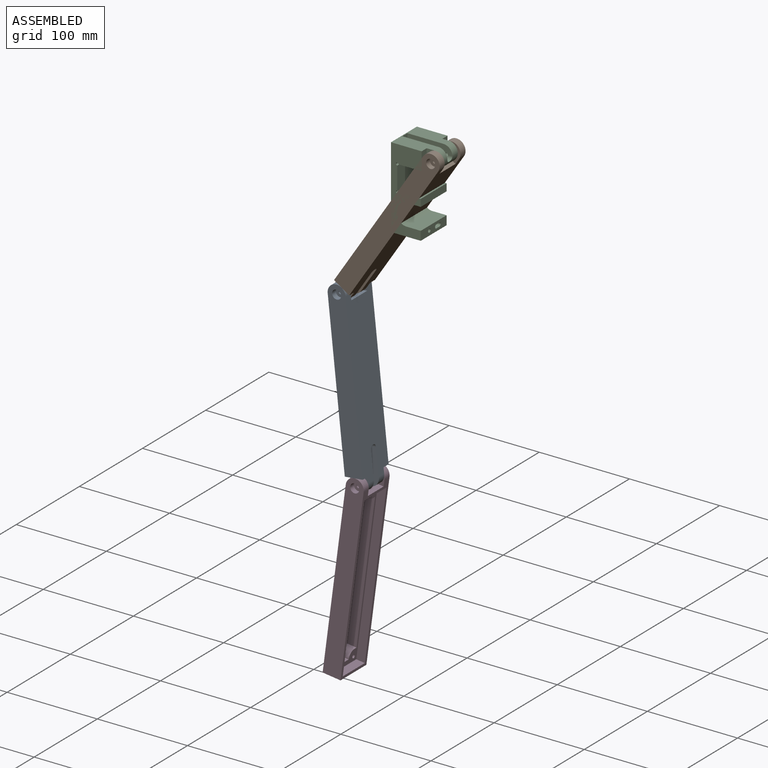
[diagram: assembled view]
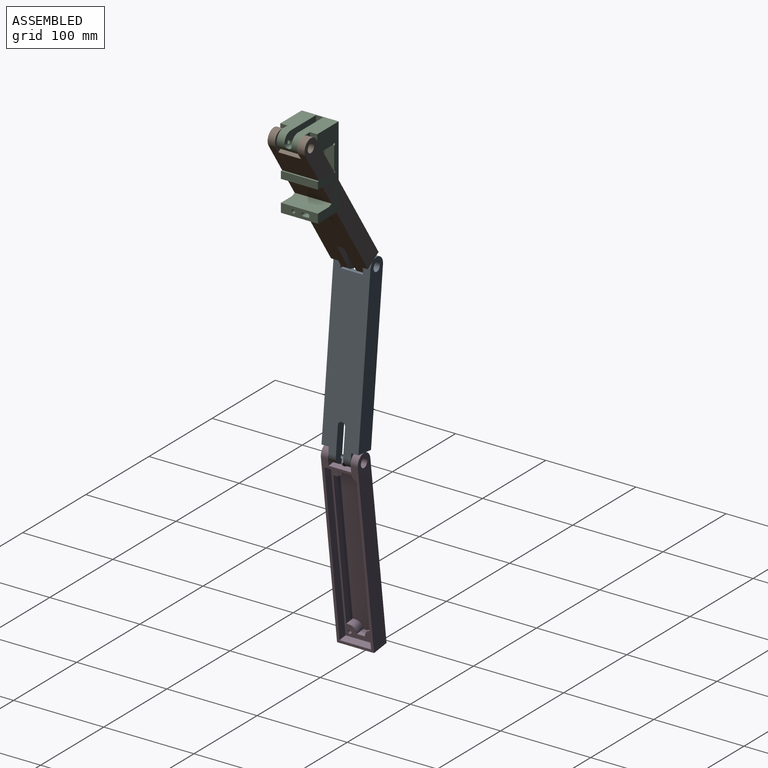
[diagram: assembled view, second angle]
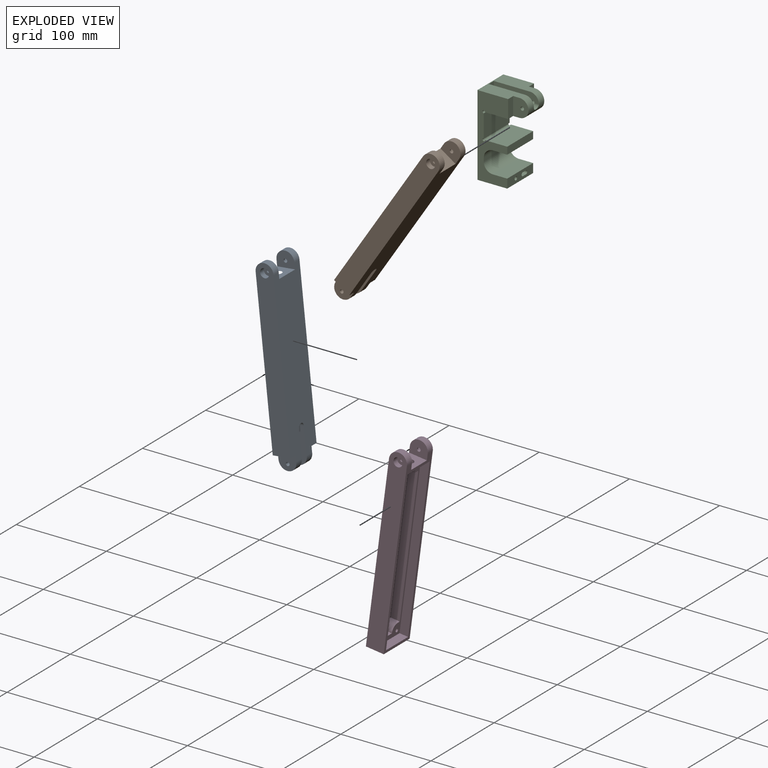
[diagram: exploded view]
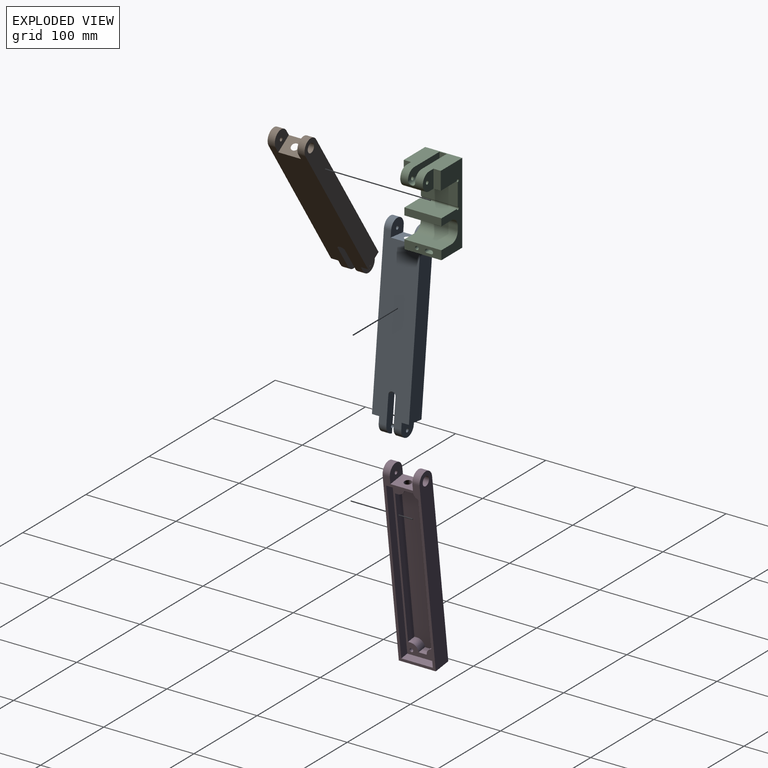
[diagram: exploded view, second angle]
ASSEMBLY  parts=4 mates=6
PART A: 27 faces, bbox 223x57x36 mm
  f0: cylinder r=2mm len=9.04mm, axis (0,-1,0), area 108.5mm2, adj f1,f2,f3
  f1: plane 20x17mm, normal (0,1,0), area 284.5mm2, adj f0,f4,f5,f6,f7
  f2: cylinder r=4mm len=44.01mm, axis (1,0,0), area 458.6mm2, adj f0,f3,f4,f8,f9,f10
  f3: plane 56x26mm, normal (0,-1,0), area 372.3mm2, adj f0,f2,f4,f5,f10
  f4: cylinder r=10mm len=25mm, axis (0,-1,0), area 634.1mm2, adj f1,f2,f3,f5,f7,f8,f11
  f5: plane 187x41mm, normal (0,0,1), area 7114.9mm2, adj f1,f3,f4,f6,f8,f10,f11,f12
  f6: plane 20x8mm, normal (-1,0,0), area 160mm2, adj f1,f5,f7,f19
  f7: plane 187x41mm, normal (0,0,-1), area 7380mm2, adj f1,f4,f6,f11,f12,f13,f14,f15
  f8: plane 40x10mm, normal (0,1,0), area 372.3mm2, adj f2,f4,f5,f9,f10
  f9: cylinder r=2mm len=9.04mm, axis (0,-1,0), area 108.5mm2, adj f2,f8,f11
  f10: cylinder r=4mm len=10mm, axis (0,0,1), area 93.7mm2, adj f2,f3,f5,f8
  f11: plane 20x17mm, normal (0,-1,0), area 284.5mm2, adj f4,f5,f7,f9,f12
  f12: plane 20x8mm, normal (-1,0,0), area 160mm2, adj f5,f7,f11,f13
  f13: plane 190x20mm, normal (0,-1,0), area 3678.5mm2, adj f5,f7,f12,f14,f20
  f14: cylinder r=10mm len=20mm, axis (0,-1,0), area 251.3mm2, adj f5,f7,f13,f15
  f15: plane 20x17mm, normal (0,1,0), area 284.5mm2, adj f5,f7,f14,f16,f21
  f16: plane 41x36mm, normal (1,0,0), area 449.7mm2, adj f5,f7,f15,f17,f22
  f17: plane 20x17mm, normal (0,-1,0), area 284.5mm2, adj f5,f7,f16,f18,f23
  f18: cylinder r=10mm len=20mm, axis (0,-1,0), area 251.3mm2, adj f5,f7,f17,f19
  f19: plane 190x20mm, normal (0,1,0), area 3678.5mm2, adj f5,f6,f7,f18,f24
  f20: cylinder r=5mm len=10mm, axis (0,-1,0), area 188.5mm2, adj f13,f25
  f21: cylinder r=2mm len=4mm, axis (0,-1,0), area 25.1mm2, adj f15,f25
  f22: cylinder r=4mm len=8mm, axis (1,0,0), area 0mm2, adj f16
  f23: cylinder r=2mm len=4mm, axis (0,-1,0), area 25.1mm2, adj f17,f26
  f24: cylinder r=5mm len=10mm, axis (0,1,0), area 188.5mm2, adj f19,f26
  f25: plane 10x10mm, normal (0,-1,0), area 66mm2, adj f20,f21
  f26: plane 10x10mm, normal (0,1,0), area 66mm2, adj f23,f24
PART B: same geometry as A
PART C: 35 faces, bbox 51.4x41.4x90.4 mm
  f0: cylinder r=4mm len=50mm, axis (-1,0,0), area 558.8mm2, adj f1,f2,f4,f6,f8,f9,f34
  f1: plane 50x9.99mm, normal (0,-1,0), area 471.7mm2, adj f0,f6,f9,f11,f34
  f2: plane 50x10mm, normal (0,1,0), area 472.3mm2, adj f0,f8,f9,f11,f34
  f3: cylinder r=4mm len=78mm, axis (0,0,1), area 772.5mm2, adj f4,f5,f27,f34
  f4: bspline ~7.94x7.5mm, area 58.7mm2, adj f0,f3,f34
  f5: plane 41x33mm, normal (0,0,-1), area 1335.8mm2, adj f3,f7,f13,f14,f16,f34
  f6: cylinder r=2mm len=9.04mm, axis (0,-1,0), area 108.5mm2, adj f0,f1,f18
  f7: plane 90x41mm, normal (1,0,0), area 3644.9mm2, adj f5,f11,f13,f16,f25,f26,f27,f28
  f8: cylinder r=2mm len=9.04mm, axis (0,-1,0), area 108.5mm2, adj f0,f2,f10
  f9: cylinder r=10mm len=25mm, axis (0,-1,0), area 634.1mm2, adj f0,f1,f2,f10,f11,f12,f18
  f10: plane 20x17mm, normal (0,-1,0), area 284.5mm2, adj f8,f9,f11,f12,f15
  f11: plane 41x41mm, normal (0,0,1), area 1249mm2, adj f1,f2,f7,f9,f10,f13,f15,f16
  f12: plane 41x32.5mm, normal (0,0,-1), area 1220.5mm2, adj f9,f10,f13,f15,f16,f17,f18,f31
  f13: plane 90x34mm, normal (0,1,0), area 1670.3mm2, adj f5,f7,f11,f12,f14,f17,f19,f20
  f14: plane 41x10mm, normal (-1,0,0), area 364.9mm2, adj f5,f13,f16,f24,f25,f26,f27,f28
  f15: plane 20x8mm, normal (-1,0,0), area 160mm2, adj f10,f11,f12,f16
  f16: plane 90x34mm, normal (0,-1,0), area 1670.3mm2, adj f5,f7,f11,f12,f14,f15,f19,f20
  f17: plane 20x8mm, normal (-1,0,0), area 160mm2, adj f11,f12,f13,f18
  f18: plane 20x17mm, normal (0,1,0), area 284.5mm2, adj f6,f9,f11,f12,f17
  f19: plane 41x25mm, normal (-1,0,0), area 1025mm2, adj f13,f16,f30,f31
  f20: plane 41x24.5mm, normal (0,0,1), area 1004.5mm2, adj f13,f16,f21,f30
  f21: plane 41x8mm, normal (-1,0,0), area 328mm2, adj f13,f16,f20,f22
  f22: plane 41x16mm, normal (0,0,-1), area 656mm2, adj f13,f16,f21,f32
  f23: plane 41x4mm, normal (-1,0,0), area 164mm2, adj f13,f16,f32,f33
  f24: plane 41x16mm, normal (0,0,1), area 656mm2, adj f13,f14,f16,f33
  f25: cylinder r=2mm len=33mm, axis (-1,0,0), area 207.3mm2, adj f7,f14,f26,f28
  f26: plane 33x5mm, normal (0,0,-1), area 165mm2, adj f7,f14,f25,f27
  f27: cylinder r=2mm len=33mm, axis (-1,0,0), area 197.9mm2, adj f3,f7,f14,f26,f28,f34
  f28: plane 33x5mm, normal (0,0,1), area 165mm2, adj f7,f14,f25,f27
  f29: cylinder r=2mm len=33mm, axis (-1,0,0), area 414.7mm2, adj f7,f14
  f30: cylinder r=1.5mm len=41mm, axis (0,-1,0), area 289.8mm2, adj f13,f16,f19,f20
  f31: cylinder r=1.5mm len=41mm, axis (0,-1,0), area 289.8mm2, adj f12,f13,f16,f19
  f32: cylinder r=10mm len=41mm, axis (0,1,0), area 644mm2, adj f13,f16,f22,f23
  f33: cylinder r=10mm len=41mm, axis (0,1,0), area 644mm2, adj f13,f16,f23,f24
  f34: plane 90.35x8.35mm, normal (-1,0,0), area 695.1mm2, adj f0,f1,f2,f3,f4,f5,f11,f27
PART D: 68 faces, bbox 207x41x21.8 mm
  f0: plane 9x3.19mm, normal (-1,0,0), area 20.2mm2, adj f23,f24,f66,f67
  f1: plane 184.03x35.03mm, normal (0,0,1), area 1249.9mm2, adj f5,f6,f7,f8,f9,f23,f24,f25
  f2: cylinder r=2mm len=4mm, axis (0,1,0), area 25.1mm2, adj f20,f22
  f3: cylinder r=2mm len=4mm, axis (0,-1,0), area 25.1mm2, adj f16,f17
  f4: plane 25x20mm, normal (1,0,0), area 449.7mm2, adj f13,f14,f16,f20,f65
  f5: plane 10.2x9mm, normal (1,0,0), area 91.8mm2, adj f1,f25,f26,f67
  f6: plane 184x9.6mm, normal (0,1,0), area 1766.4mm2, adj f1,f7,f9,f13
  f7: plane 35x9.6mm, normal (-1,0,0), area 314.1mm2, adj f1,f6,f8,f13,f65
  f8: plane 184x9.6mm, normal (0,-1,0), area 1766.4mm2, adj f1,f7,f9,f13
  f9: plane 35x9.6mm, normal (1,0,0), area 336mm2, adj f1,f6,f8,f13
  f10: plane 41x20mm, normal (-1,0,0), area 820mm2, adj f11,f12,f13,f14
  f11: plane 207x20mm, normal (0,1,0), area 4018.5mm2, adj f10,f13,f14,f19,f21
  f12: plane 207x20mm, normal (0,-1,0), area 4018.5mm2, adj f10,f13,f14,f15,f18
  f13: plane 197x41mm, normal (0,0,1), area 1462mm2, adj f4,f6,f7,f8,f9,f10,f11,f12
  f14: plane 197x41mm, normal (0,0,-1), area 7793.4mm2, adj f4,f10,f11,f12,f15,f16,f19,f20
  f15: cylinder r=10mm len=20mm, axis (0,-1,0), area 251.3mm2, adj f12,f13,f14,f16
  f16: plane 20x17mm, normal (0,1,0), area 284.5mm2, adj f3,f4,f13,f14,f15
  f17: plane 10x10mm, normal (0,-1,0), area 66mm2, adj f3,f18
  f18: cylinder r=5mm len=10mm, axis (0,-1,0), area 188.5mm2, adj f12,f17
  f19: cylinder r=10mm len=20mm, axis (0,1,0), area 251.3mm2, adj f11,f13,f14,f20
  f20: plane 20x17mm, normal (0,-1,0), area 284.5mm2, adj f2,f4,f13,f14,f19
  f21: cylinder r=5mm len=10mm, axis (0,1,0), area 188.5mm2, adj f11,f22
  f22: plane 10x10mm, normal (0,1,0), area 66mm2, adj f2,f21
  f23: cylinder r=8mm len=10.2mm, axis (0,0,1), area 134.4mm2, adj f0,f1,f60,f66,f67
  f24: cylinder r=8mm len=10.2mm, axis (0,0,1), area 134.4mm2, adj f0,f1,f64,f66,f67
  f25: cylinder r=8mm len=10.2mm, axis (0,0,1), area 128.2mm2, adj f1,f5,f62,f67
  f26: cylinder r=8mm len=10.2mm, axis (0,0,1), area 128.2mm2, adj f1,f5,f59,f67
  f27: plane 3x2.8mm, normal (0.5,-0.87,0), area 9.7mm2, adj f14,f28,f32,f33
  f28: plane 3.23x3mm, normal (1,0,0), area 9.7mm2, adj f14,f27,f29,f33
  f29: plane 3x2.8mm, normal (0.5,0.87,0), area 9.7mm2, adj f14,f28,f30,f33
  f30: plane 3x2.8mm, normal (-0.5,0.87,0), area 9.7mm2, adj f14,f29,f31,f33
  f31: plane 3.23x3mm, normal (-1,0,0), area 9.7mm2, adj f14,f30,f32,f33
  f32: plane 3x2.8mm, normal (-0.5,-0.87,0), area 9.7mm2, adj f14,f27,f31,f33
  f33: plane 6.47x5.6mm, normal (0,0,-1), area 14.6mm2, adj f27,f28,f29,f30,f31,f32,f57
  f34: plane 3x2.8mm, normal (0.5,-0.87,0), area 9.7mm2, adj f14,f35,f39,f40
  f35: plane 3.23x3mm, normal (1,0,0), area 9.7mm2, adj f14,f34,f36,f40
  f36: plane 3x2.8mm, normal (0.5,0.87,0), area 9.7mm2, adj f14,f35,f37,f40
  f37: plane 3x2.8mm, normal (-0.5,0.87,0), area 9.7mm2, adj f14,f36,f38,f40
  f38: plane 3.23x3mm, normal (-1,0,0), area 9.7mm2, adj f14,f37,f39,f40
  f39: plane 3x2.8mm, normal (-0.5,-0.87,0), area 9.7mm2, adj f14,f34,f38,f40
  f40: plane 6.47x5.6mm, normal (0,0,-1), area 14.6mm2, adj f34,f35,f36,f37,f38,f39,f56
  f41: plane 3x2.8mm, normal (0.5,-0.87,0), area 9.7mm2, adj f14,f42,f46,f47
  f42: plane 3.23x3mm, normal (1,0,0), area 9.7mm2, adj f14,f41,f43,f47
  f43: plane 3x2.8mm, normal (0.5,0.87,0), area 9.7mm2, adj f14,f42,f44,f47
  f44: plane 3x2.8mm, normal (-0.5,0.87,0), area 9.7mm2, adj f14,f43,f45,f47
  f45: plane 3.23x3mm, normal (-1,0,0), area 9.7mm2, adj f14,f44,f46,f47
  f46: plane 3x2.8mm, normal (-0.5,-0.87,0), area 9.7mm2, adj f14,f41,f45,f47
  f47: plane 6.47x5.6mm, normal (0,0,-1), area 14.6mm2, adj f41,f42,f43,f44,f45,f46,f55
  f48: plane 3x2.8mm, normal (0.5,-0.87,0), area 9.7mm2, adj f14,f49,f53,f54
  f49: plane 3.23x3mm, normal (1,0,0), area 9.7mm2, adj f14,f48,f50,f54
  f50: plane 3x2.8mm, normal (0.5,0.87,0), area 9.7mm2, adj f14,f49,f51,f54
  f51: plane 3x2.8mm, normal (-0.5,0.87,0), area 9.7mm2, adj f14,f50,f52,f54
  f52: plane 3.23x3mm, normal (-1,0,0), area 9.7mm2, adj f14,f51,f53,f54
  f53: plane 3x2.8mm, normal (-0.5,-0.87,0), area 9.7mm2, adj f14,f48,f52,f54
  f54: plane 6.47x5.6mm, normal (0,0,-1), area 14.6mm2, adj f48,f49,f50,f51,f52,f53,f58
  f55: cylinder r=2mm len=7.4mm, axis (0,0,-1), area 93mm2, adj f1,f47
  f56: cylinder r=2mm len=7.4mm, axis (0,0,-1), area 93mm2, adj f1,f40
  f57: cylinder r=2mm len=7.4mm, axis (0,0,-1), area 93mm2, adj f1,f33
  f58: cylinder r=2mm len=7.4mm, axis (0,0,-1), area 93mm2, adj f1,f54
  f59: plane 10.2x3mm, normal (1,0,0), area 30.6mm2, adj f1,f26,f61,f67
  f60: plane 10.2x3mm, normal (-1,0,0), area 30.6mm2, adj f1,f23,f61,f67
  f61: plane 158x10.2mm, normal (0,-1,0), area 1611.6mm2, adj f1,f59,f60,f67
  f62: plane 10.2x3mm, normal (1,0,0), area 30.6mm2, adj f1,f25,f63,f67
  f63: plane 158x10.2mm, normal (0,1,0), area 1611.6mm2, adj f1,f62,f64,f67
  f64: plane 10.2x3mm, normal (-1,0,0), area 30.6mm2, adj f1,f24,f63,f67
  f65: cylinder r=4mm len=8mm, axis (1,0,0), area 88.8mm2, adj f1,f4,f7,f66
  f66: torus R=8mm, axis (1,0,0), area 74.6mm2, adj f0,f1,f23,f24,f65
  f67: plane 174x31mm, normal (0,0,1), area 5096.9mm2, adj f0,f5,f23,f24,f25,f26,f59,f60
PLACE A rot(axis=(0.67,0,0.74),180deg) t=(-39.41,0.04,-415.77)mm
PLACE B rot(axis=(-0.88,0,-0.48),180deg) t=(-124.58,0.04,-204.13)mm
PLACE C rot(axis=(0,0,1),180deg) t=(336,0.04,24.5)mm
PLACE D rot(axis=(-0.75,0,-0.66),180deg) t=(-63.43,0.04,-413.11)mm
MATE cylindrical C.f6 <-> B.f14  axis (0,-1,0) through (44,-12.46,34.5)mm
MATE planar B.f0 <-> A.f14  axis (0,1,0) through (-60.25,12.54,-124.34)mm
MATE planar A.f0 <-> D.f16  axis (0,1,0) through (-40.22,12.54,-313.28)mm
MATE cylindrical B.f0 <-> A.f14  axis (0,1,0) through (-60.25,12.54,-124.34)mm
MATE cylindrical D.f2 <-> A.f0  axis (0,1,0) through (-40.22,17.54,-313.28)mm
MATE planar C.f6 <-> B.f14  axis (0,-1,0) through (44,-12.46,34.5)mm
